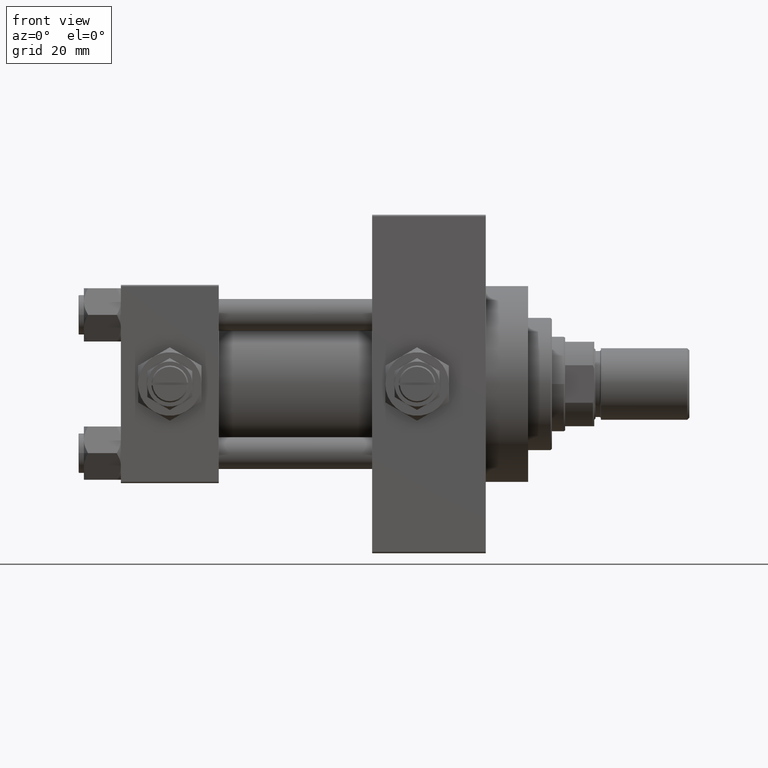
[diagram: clean part render]
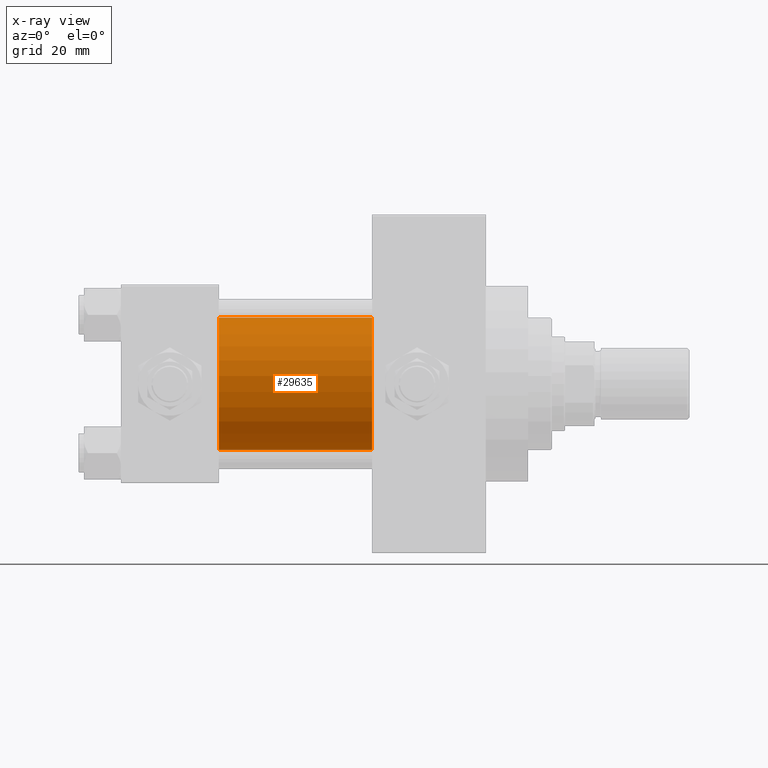
[diagram: x-ray — body ghosted, one internal face saturated and labeled with its STEP entity id]
A machine part, front view, then the same camera in x-ray: the body is ghosted and one INTERNAL B-rep face — a face not visible from any outside direction — is saturated and labeled: STEP entity #29635.
In plain terms, the highlighted cylindrical surface (partial cylindrical patch) has radius 25 mm, axis along (-1, -0, -0).
Its self-contained STEP definition (entity closure, byte-faithful):
#2504 = VERTEX_POINT ( 'NONE', #23859 ) ;
#4551 = CARTESIAN_POINT ( 'NONE',  ( 37.00000000000000000, -2.602085213965210642E-15, 0.000000000000000000 ) ) ;
#5751 = LINE ( 'NONE', #25375, #10836 ) ;
#6245 = VERTEX_POINT ( 'NONE', #32856 ) ;
#8121 = DIRECTION ( 'NONE',  ( -1.000000000000000000, -0.000000000000000000, -0.000000000000000000 ) ) ;
#9626 = DIRECTION ( 'NONE',  ( 0.000000000000000000, 0.000000000000000000, 1.000000000000000000 ) ) ;
#10836 = VECTOR ( 'NONE', #32673, 1000.000000000000000 ) ;
#13071 = AXIS2_PLACEMENT_3D ( 'NONE', #4551, #31230, #46553 ) ;
#13148 = DIRECTION ( 'NONE',  ( -1.000000000000000000, -0.000000000000000000, -0.000000000000000000 ) ) ;
#13243 = EDGE_CURVE ( 'NONE', #17267, #6245, #31769, .T. ) ;
#14662 = CIRCLE ( 'NONE', #13071, 25.00000000000000000 ) ;
#16930 = FACE_OUTER_BOUND ( 'NONE', #44009, .T. ) ;
#17098 = AXIS2_PLACEMENT_3D ( 'NONE', #47583, #13148, #9626 ) ;
#17267 = VERTEX_POINT ( 'NONE', #32971 ) ;
#19610 = VERTEX_POINT ( 'NONE', #30810 ) ;
#20597 = AXIS2_PLACEMENT_3D ( 'NONE', #21833, #44958, #29382 ) ;
#21387 = VECTOR ( 'NONE', #8121, 1000.000000000000000 ) ;
#21833 = CARTESIAN_POINT ( 'NONE',  ( 95.00000000000000000, -2.602085213965210642E-15, 0.000000000000000000 ) ) ;
#23859 = CARTESIAN_POINT ( 'NONE',  ( 37.00000000000000000, 4.595317839031718093E-16, -25.00000000000000000 ) ) ;
#24976 = CYLINDRICAL_SURFACE ( 'NONE', #17098, 25.00000000000000000 ) ;
#25375 = CARTESIAN_POINT ( 'NONE',  ( 95.00000000000000000, 4.595317839031718093E-16, -25.00000000000000000 ) ) ;
#25478 = EDGE_CURVE ( 'NONE', #6245, #2504, #14662, .T. ) ;
#26185 = ORIENTED_EDGE ( 'NONE', *, *, #25478, .F. ) ;
#29382 = DIRECTION ( 'NONE',  ( 0.000000000000000000, 0.000000000000000000, -1.000000000000000000 ) ) ;
#29635 = ADVANCED_FACE ( 'NONE', ( #16930 ), #24976, .F. ) ;
#30810 = CARTESIAN_POINT ( 'NONE',  ( 95.00000000000000000, 4.595317839031718093E-16, -25.00000000000000000 ) ) ;
#31230 = DIRECTION ( 'NONE',  ( 1.000000000000000000, 0.000000000000000000, 0.000000000000000000 ) ) ;
#31769 = LINE ( 'NONE', #46349, #21387 ) ;
#32673 = DIRECTION ( 'NONE',  ( -1.000000000000000000, -0.000000000000000000, -0.000000000000000000 ) ) ;
#32856 = CARTESIAN_POINT ( 'NONE',  ( 37.00000000000000000, -2.602085213965210642E-15, 25.00000000000000000 ) ) ;
#32971 = CARTESIAN_POINT ( 'NONE',  ( 95.00000000000000000, -2.602085213965210642E-15, 25.00000000000000000 ) ) ;
#33699 = ORIENTED_EDGE ( 'NONE', *, *, #34683, .T. ) ;
#34683 = EDGE_CURVE ( 'NONE', #19610, #2504, #5751, .T. ) ;
#36529 = ORIENTED_EDGE ( 'NONE', *, *, #13243, .F. ) ;
#40496 = EDGE_CURVE ( 'NONE', #17267, #19610, #44678, .T. ) ;
#44009 = EDGE_LOOP ( 'NONE', ( #46211, #33699, #26185, #36529 ) ) ;
#44678 = CIRCLE ( 'NONE', #20597, 25.00000000000000000 ) ;
#44958 = DIRECTION ( 'NONE',  ( 1.000000000000000000, 0.000000000000000000, 0.000000000000000000 ) ) ;
#46211 = ORIENTED_EDGE ( 'NONE', *, *, #40496, .T. ) ;
#46349 = CARTESIAN_POINT ( 'NONE',  ( 95.00000000000000000, -2.602085213965210642E-15, 25.00000000000000000 ) ) ;
#46553 = DIRECTION ( 'NONE',  ( 0.000000000000000000, 0.000000000000000000, -1.000000000000000000 ) ) ;
#47583 = CARTESIAN_POINT ( 'NONE',  ( 95.00000000000000000, -2.602085213965210642E-15, 0.000000000000000000 ) ) ;